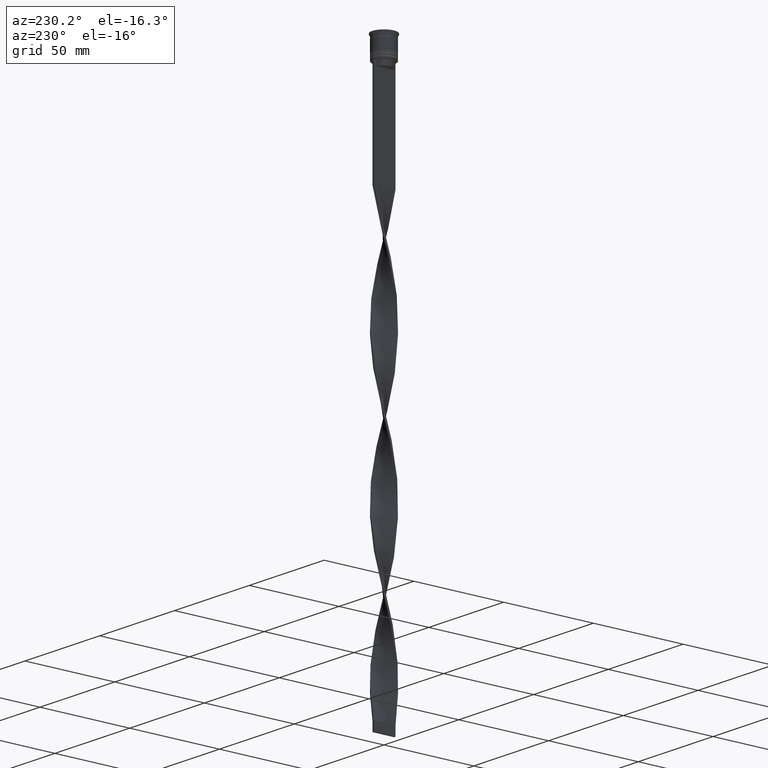
[diagram: clean part render]
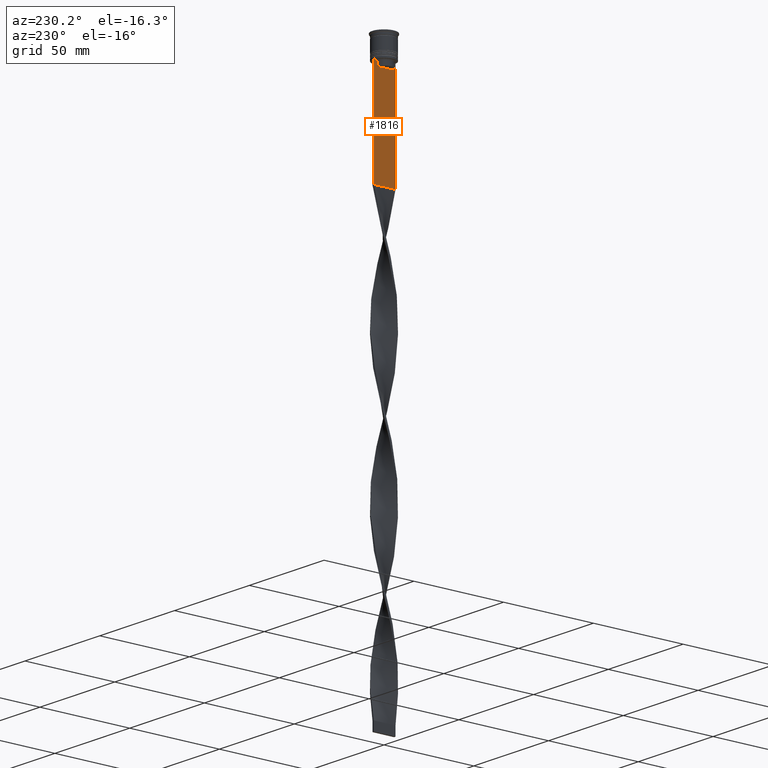
[diagram: same view with one face highlighted and labeled with its STEP entity id]
A machine part, auxiliary view. The second image highlights one B-rep face of the part: STEP entity #1816.
In plain terms, the highlighted planar face has unit normal (-1, 0, 0).
Its self-contained STEP definition (entity closure, byte-faithful):
#47 = ORIENTED_EDGE ( 'NONE', *, *, #3882, .F. ) ;
#143 = CARTESIAN_POINT ( 'NONE',  ( -0.4999999999999997780, -4.371498598878878816, -15.50000000000000000 ) ) ;
#148 = VECTOR ( 'NONE', #2649, 1000.000000000000000 ) ;
#200 = VERTEX_POINT ( 'NONE', #1073 ) ;
#225 = ORIENTED_EDGE ( 'NONE', *, *, #2510, .F. ) ;
#228 = EDGE_CURVE ( 'NONE', #1099, #1857, #2033, .T. ) ;
#286 = VECTOR ( 'NONE', #447, 1000.000000000000000 ) ;
#323 = LINE ( 'NONE', #1250, #2859 ) ;
#342 = CARTESIAN_POINT ( 'NONE',  ( -0.4999999999999997780, -4.539195586926424220, -12.83338928448044136 ) ) ;
#363 = EDGE_CURVE ( 'NONE', #718, #200, #3355, .T. ) ;
#393 = CARTESIAN_POINT ( 'NONE',  ( -0.4999999999999997780, 6.000000000000000888, -0.4584054212077061097 ) ) ;
#416 = ORIENTED_EDGE ( 'NONE', *, *, #616, .F. ) ;
#441 = DIRECTION ( 'NONE',  ( 0.000000000000000000, 1.000000000000000000, 0.000000000000000000 ) ) ;
#447 = DIRECTION ( 'NONE',  ( 0.000000000000000000, -1.000000000000000000, 0.000000000000000000 ) ) ;
#488 = VECTOR ( 'NONE', #441, 1000.000000000000000 ) ;
#585 = VERTEX_POINT ( 'NONE', #2407 ) ;
#616 = EDGE_CURVE ( 'NONE', #1685, #718, #2807, .T. ) ;
#639 = LINE ( 'NONE', #3548, #3660 ) ;
#670 = CARTESIAN_POINT ( 'NONE',  ( -0.4999999999999997780, 4.371498598878878816, -13.00000000000000178 ) ) ;
#718 = VERTEX_POINT ( 'NONE', #1842 ) ;
#724 = DIRECTION ( 'NONE',  ( 0.000000000000000000, -1.000000000000000000, 0.000000000000000000 ) ) ;
#731 = CARTESIAN_POINT ( 'NONE',  ( -0.4999999999999997780, -4.371498598878878816, 0.000000000000000000 ) ) ;
#776 = DIRECTION ( 'NONE',  ( 0.000000000000000000, 0.000000000000000000, 1.000000000000000000 ) ) ;
#815 = CARTESIAN_POINT ( 'NONE',  ( -0.4999999999999997780, -4.371498598878878816, -13.00000000000000178 ) ) ;
#833 = EDGE_CURVE ( 'NONE', #2896, #2529, #3538, .T. ) ;
#943 = AXIS2_PLACEMENT_3D ( 'NONE', #3627, #1433, #776 ) ;
#998 = CARTESIAN_POINT ( 'NONE',  ( -0.4999999999999997780, -4.371498598878878816, -13.00000000000000178 ) ) ;
#1023 = DIRECTION ( 'NONE',  ( 0.000000000000000000, 0.000000000000000000, -1.000000000000000000 ) ) ;
#1031 = VERTEX_POINT ( 'NONE', #143 ) ;
#1073 = CARTESIAN_POINT ( 'NONE',  ( -0.4999999999999997780, 4.371498598878878816, -15.50000000000000000 ) ) ;
#1099 = VERTEX_POINT ( 'NONE', #3316 ) ;
#1129 = ORIENTED_EDGE ( 'NONE', *, *, #363, .F. ) ;
#1250 = CARTESIAN_POINT ( 'NONE',  ( -0.4999999999999997780, -6.000000000000000000, -12.50000000000000000 ) ) ;
#1260 = VECTOR ( 'NONE', #3298, 1000.000000000000000 ) ;
#1263 = VERTEX_POINT ( 'NONE', #815 ) ;
#1393 = CARTESIAN_POINT ( 'NONE',  ( -0.4999999999999997780, 6.000000000000000888, -68.50000000000000000 ) ) ;
#1433 = DIRECTION ( 'NONE',  ( -1.000000000000000000, 0.000000000000000000, 0.000000000000000000 ) ) ;
#1478 = ORIENTED_EDGE ( 'NONE', *, *, #3176, .F. ) ;
#1539 = VECTOR ( 'NONE', #724, 1000.000000000000000 ) ;
#1562 = ORIENTED_EDGE ( 'NONE', *, *, #3488, .F. ) ;
#1595 = VECTOR ( 'NONE', #3569, 1000.000000000000000 ) ;
#1612 = ORIENTED_EDGE ( 'NONE', *, *, #2680, .F. ) ;
#1685 = VERTEX_POINT ( 'NONE', #4068 ) ;
#1816 = ADVANCED_FACE ( 'NONE', ( #3399 ), #2127, .T. ) ;
#1842 = CARTESIAN_POINT ( 'NONE',  ( -0.4999999999999997780, 4.371498598878878816, -13.00000000000000178 ) ) ;
#1857 = VERTEX_POINT ( 'NONE', #2668 ) ;
#1968 = ORIENTED_EDGE ( 'NONE', *, *, #228, .F. ) ;
#1971 = EDGE_CURVE ( 'NONE', #3221, #1099, #323, .T. ) ;
#1988 = VECTOR ( 'NONE', #3642, 1000.000000000000000 ) ;
#2024 = LINE ( 'NONE', #3580, #286 ) ;
#2033 = LINE ( 'NONE', #4010, #1260 ) ;
#2043 = CARTESIAN_POINT ( 'NONE',  ( -0.4999999999999997780, 4.399999999999999467, -15.50000000000000000 ) ) ;
#2127 = PLANE ( 'NONE',  #943 ) ;
#2139 = CARTESIAN_POINT ( 'NONE',  ( -0.4999999999999997780, 4.706831415367290106, -12.66671683478478982 ) ) ;
#2212 = DIRECTION ( 'NONE',  ( 0.000000000000000000, -1.000000000000000000, 0.000000000000000000 ) ) ;
#2252 = LINE ( 'NONE', #3521, #1539 ) ;
#2270 = CARTESIAN_POINT ( 'NONE',  ( -0.4999999999999997780, -4.874423042781576676, -12.50000000000000000 ) ) ;
#2289 = CARTESIAN_POINT ( 'NONE',  ( -0.4999999999999997780, -4.706831372970964544, -12.66671687695981596 ) ) ;
#2326 = LINE ( 'NONE', #3592, #488 ) ;
#2338 = B_SPLINE_CURVE_WITH_KNOTS ( 'NONE', 3,
 ( #998, #342, #2289, #2270 ),
 .UNSPECIFIED., .F., .F.,
 ( 4, 4 ),
 ( 0.02089901220910806920, 0.02161421017310284978 ),
 .UNSPECIFIED. ) ;
#2348 = VECTOR ( 'NONE', #2389, 1000.000000000000000 ) ;
#2366 = CARTESIAN_POINT ( 'NONE',  ( -0.4999999999999997780, 5.878775382679627626, -12.50000000000000000 ) ) ;
#2389 = DIRECTION ( 'NONE',  ( -0.000000000000000000, -0.000000000000000000, 1.000000000000000000 ) ) ;
#2407 = CARTESIAN_POINT ( 'NONE',  ( -0.4999999999999997780, -6.000000000000000000, -68.50000000000000000 ) ) ;
#2510 = EDGE_CURVE ( 'NONE', #200, #1031, #2956, .T. ) ;
#2529 = VERTEX_POINT ( 'NONE', #1393 ) ;
#2588 = EDGE_CURVE ( 'NONE', #1857, #585, #639, .T. ) ;
#2649 = DIRECTION ( 'NONE',  ( 0.000000000000000000, -1.000000000000000000, 0.000000000000000000 ) ) ;
#2668 = CARTESIAN_POINT ( 'NONE',  ( -0.4999999999999997780, -6.000000000000000000, -12.50000000000000000 ) ) ;
#2672 = CARTESIAN_POINT ( 'NONE',  ( -0.4999999999999997780, 4.371498598878878816, 0.000000000000000000 ) ) ;
#2680 = EDGE_CURVE ( 'NONE', #3441, #1685, #2024, .T. ) ;
#2807 = B_SPLINE_CURVE_WITH_KNOTS ( 'NONE', 3,
 ( #3009, #2139, #3410, #670 ),
 .UNSPECIFIED., .F., .F.,
 ( 4, 4 ),
 ( 0.008336552452178418518, 0.009045730124312837891 ),
 .UNSPECIFIED. ) ;
#2820 = ORIENTED_EDGE ( 'NONE', *, *, #833, .T. ) ;
#2859 = VECTOR ( 'NONE', #2212, 1000.000000000000000 ) ;
#2889 = CARTESIAN_POINT ( 'NONE',  ( -0.4999999999999997780, -4.874423042781576676, -12.50000000000000000 ) ) ;
#2896 = VERTEX_POINT ( 'NONE', #4037 ) ;
#2956 = LINE ( 'NONE', #2043, #148 ) ;
#3009 = CARTESIAN_POINT ( 'NONE',  ( -0.4999999999999997780, 4.874423042781576676, -12.50000000000000000 ) ) ;
#3029 = EDGE_LOOP ( 'NONE', ( #416, #1612, #3263, #2820, #1562, #3506, #1968, #3565, #1478, #47, #225, #1129 ) ) ;
#3176 = EDGE_CURVE ( 'NONE', #1263, #3221, #2338, .T. ) ;
#3221 = VERTEX_POINT ( 'NONE', #2889 ) ;
#3263 = ORIENTED_EDGE ( 'NONE', *, *, #3296, .F. ) ;
#3296 = EDGE_CURVE ( 'NONE', #2896, #3441, #2252, .T. ) ;
#3298 = DIRECTION ( 'NONE',  ( 0.000000000000000000, -1.000000000000000000, 0.000000000000000000 ) ) ;
#3316 = CARTESIAN_POINT ( 'NONE',  ( -0.4999999999999997780, -5.878775382679627626, -12.50000000000000000 ) ) ;
#3355 = LINE ( 'NONE', #2672, #1988 ) ;
#3399 = FACE_OUTER_BOUND ( 'NONE', #3029, .T. ) ;
#3410 = CARTESIAN_POINT ( 'NONE',  ( -0.4999999999999997780, 4.539195634199897356, -12.83338923751318816 ) ) ;
#3441 = VERTEX_POINT ( 'NONE', #2366 ) ;
#3488 = EDGE_CURVE ( 'NONE', #585, #2529, #2326, .T. ) ;
#3506 = ORIENTED_EDGE ( 'NONE', *, *, #2588, .F. ) ;
#3521 = CARTESIAN_POINT ( 'NONE',  ( -0.4999999999999997780, -6.000000000000000000, -12.50000000000000000 ) ) ;
#3538 = LINE ( 'NONE', #393, #1595 ) ;
#3548 = CARTESIAN_POINT ( 'NONE',  ( -0.4999999999999997780, -6.000000000000000000, -0.4584054212077061097 ) ) ;
#3565 = ORIENTED_EDGE ( 'NONE', *, *, #1971, .F. ) ;
#3569 = DIRECTION ( 'NONE',  ( 0.000000000000000000, 0.000000000000000000, -1.000000000000000000 ) ) ;
#3580 = CARTESIAN_POINT ( 'NONE',  ( -0.4999999999999997780, -6.000000000000000000, -12.50000000000000000 ) ) ;
#3592 = CARTESIAN_POINT ( 'NONE',  ( -0.4999999999999997780, -6.000000000000000000, -68.50000000000000000 ) ) ;
#3619 = LINE ( 'NONE', #731, #2348 ) ;
#3627 = CARTESIAN_POINT ( 'NONE',  ( -0.4999999999999997780, -6.000000000000000000, -0.4584054212077061097 ) ) ;
#3642 = DIRECTION ( 'NONE',  ( 0.000000000000000000, 0.000000000000000000, -1.000000000000000000 ) ) ;
#3660 = VECTOR ( 'NONE', #1023, 1000.000000000000000 ) ;
#3882 = EDGE_CURVE ( 'NONE', #1031, #1263, #3619, .T. ) ;
#4010 = CARTESIAN_POINT ( 'NONE',  ( -0.4999999999999997780, -6.000000000000000000, -12.50000000000000000 ) ) ;
#4037 = CARTESIAN_POINT ( 'NONE',  ( -0.4999999999999997780, 6.000000000000001776, -12.50000000000000000 ) ) ;
#4068 = CARTESIAN_POINT ( 'NONE',  ( -0.4999999999999997780, 4.874423042781576676, -12.50000000000000000 ) ) ;